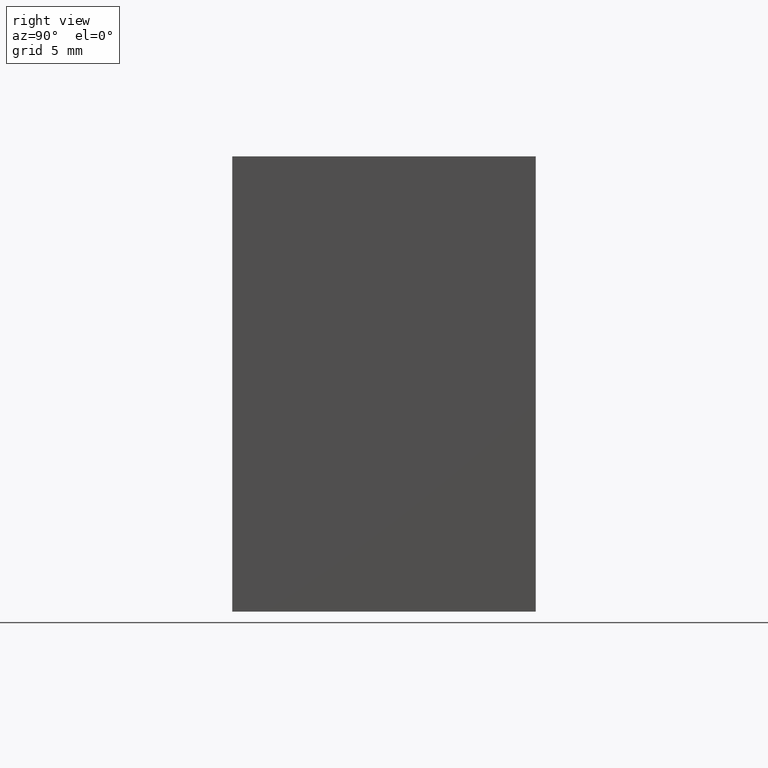
[diagram: clean part render]
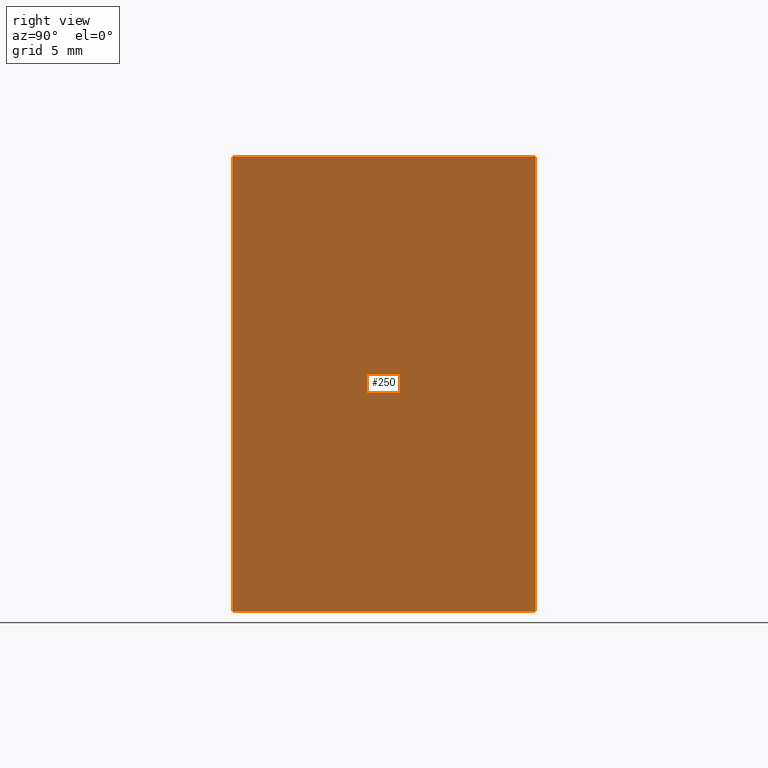
[diagram: same view with one face highlighted and labeled with its STEP entity id]
A machine part, right view. The second image highlights one B-rep face of the part: STEP entity #250.
In plain terms, the highlighted planar face has unit normal (1, 0, 0).
Its self-contained STEP definition (entity closure, byte-faithful):
#30=PLANE('',#301);
#46=FACE_OUTER_BOUND('',#66,.T.);
#66=EDGE_LOOP('',(#215,#216,#217,#218));
#80=LINE('',#426,#98);
#88=LINE('',#441,#106);
#89=LINE('',#443,#107);
#90=LINE('',#444,#108);
#98=VECTOR('',#359,10.);
#106=VECTOR('',#371,10.);
#107=VECTOR('',#374,10.);
#108=VECTOR('',#375,10.);
#134=VERTEX_POINT('',#423);
#135=VERTEX_POINT('',#425);
#139=VERTEX_POINT('',#437);
#140=VERTEX_POINT('',#439);
#160=EDGE_CURVE('',#134,#135,#80,.T.);
#168=EDGE_CURVE('',#139,#140,#88,.T.);
#169=EDGE_CURVE('',#134,#139,#89,.T.);
#170=EDGE_CURVE('',#135,#140,#90,.T.);
#215=ORIENTED_EDGE('',*,*,#169,.T.);
#216=ORIENTED_EDGE('',*,*,#168,.T.);
#217=ORIENTED_EDGE('',*,*,#170,.F.);
#218=ORIENTED_EDGE('',*,*,#160,.F.);
#250=ADVANCED_FACE('',(#46),#30,.T.);
#301=AXIS2_PLACEMENT_3D('',#442,#372,#373);
#359=DIRECTION('',(0.,0.,1.));
#371=DIRECTION('',(0.,0.,1.));
#372=DIRECTION('center_axis',(1.,4.44089209850063E-16,0.));
#373=DIRECTION('ref_axis',(-4.44089209850063E-16,1.,0.));
#374=DIRECTION('',(-4.44089209850063E-16,1.,0.));
#375=DIRECTION('',(-4.44089209850063E-16,1.,0.));
#423=CARTESIAN_POINT('',(16.,-10.,0.));
#425=CARTESIAN_POINT('',(16.,-10.,30.));
#426=CARTESIAN_POINT('',(16.,-10.,0.));
#437=CARTESIAN_POINT('',(16.,10.,0.));
#439=CARTESIAN_POINT('',(16.,10.,30.));
#441=CARTESIAN_POINT('',(16.,10.,0.));
#442=CARTESIAN_POINT('Origin',(16.,-10.,0.));
#443=CARTESIAN_POINT('',(16.,-10.,0.));
#444=CARTESIAN_POINT('',(16.,-10.,30.));